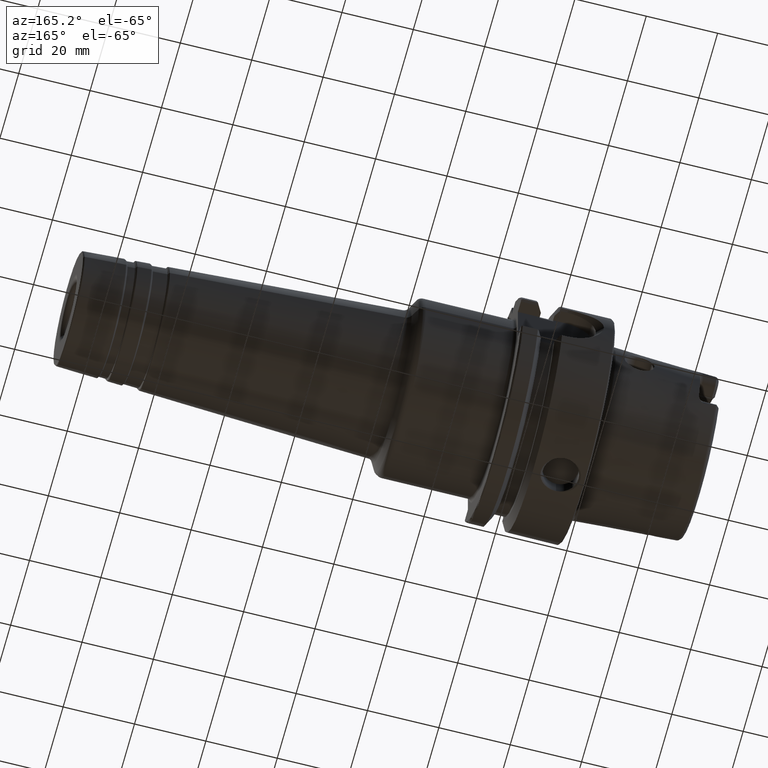
[diagram: clean part render]
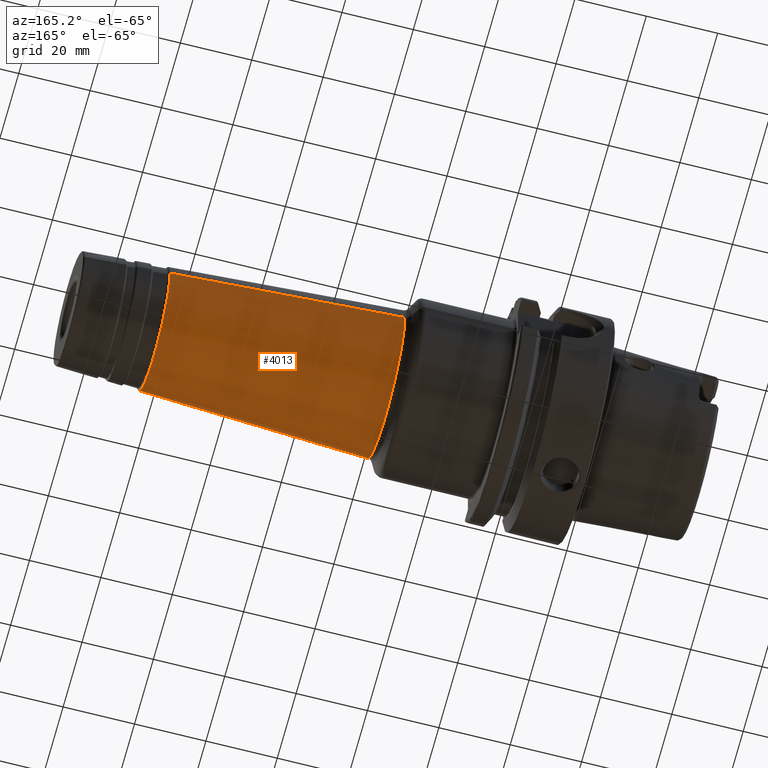
[diagram: same view with one face highlighted and labeled with its STEP entity id]
A machine part, auxiliary view. The second image highlights one B-rep face of the part: STEP entity #4013.
In plain terms, the highlighted conical surface has half-angle 3 deg.
Its self-contained STEP definition (entity closure, byte-faithful):
#541=CARTESIAN_POINT('',(4.763801060891E0,0.E0,0.E0));
#542=DIRECTION('',(-1.E0,0.E0,0.E0));
#543=DIRECTION('',(0.E0,1.E0,0.E0));
#544=AXIS2_PLACEMENT_3D('',#541,#542,#543);
#546=DIRECTION('',(-9.986295347546E-1,5.233595624294E-2,-6.838458657081E-13));
#547=VECTOR('',#546,2.558472642509E0);
#548=CARTESIAN_POINT('',(4.763801060891E0,6.795357773794E-1,0.E0));
#549=LINE('',#548,#547);
#550=CARTESIAN_POINT('',(2.208834716220E0,0.E0,0.E0));
#551=DIRECTION('',(1.E0,0.E0,0.E0));
#552=DIRECTION('',(0.E0,-1.E0,0.E0));
#553=AXIS2_PLACEMENT_3D('',#550,#551,#552);
#555=DIRECTION('',(-9.986295347546E-1,-5.233595624294E-2,6.838497749636E-13));
#556=VECTOR('',#555,2.558472642509E0);
#557=CARTESIAN_POINT('',(4.763801060891E0,-6.795357773794E-1,0.E0));
#558=LINE('',#557,#556);
#3314=CARTESIAN_POINT('',(2.208834716220E0,-8.134358896465E-1,0.E0));
#3315=CARTESIAN_POINT('',(2.208834716220E0,8.134358896465E-1,0.E0));
#3316=VERTEX_POINT('',#3314);
#3317=VERTEX_POINT('',#3315);
#3318=CARTESIAN_POINT('',(4.763801060891E0,6.795357773794E-1,0.E0));
#3319=CARTESIAN_POINT('',(4.763801060891E0,-6.795357773794E-1,0.E0));
#3320=VERTEX_POINT('',#3318);
#3321=VERTEX_POINT('',#3319);
#3998=CARTESIAN_POINT('',(3.949440717672E0,0.E0,0.E0));
#3999=DIRECTION('',(-1.E0,0.E0,0.E0));
#4000=DIRECTION('',(0.E0,1.E0,0.E0));
#4001=AXIS2_PLACEMENT_3D('',#3998,#3999,#4000);
#4002=CONICAL_SURFACE('',#4001,7.222145945036E-1,3.E0);
#4004=ORIENTED_EDGE('',*,*,#4003,.F.);
#4006=ORIENTED_EDGE('',*,*,#4005,.T.);
#4008=ORIENTED_EDGE('',*,*,#4007,.F.);
#4010=ORIENTED_EDGE('',*,*,#4009,.F.);
#4011=EDGE_LOOP('',(#4004,#4006,#4008,#4010));
#4012=FACE_OUTER_BOUND('',#4011,.F.);
#4013=ADVANCED_FACE('',(#4012),#4002,.T.);
#545=CIRCLE('',#544,6.795357773794E-1);
#554=CIRCLE('',#553,8.134358896465E-1);
#4003=EDGE_CURVE('',#3320,#3321,#545,.T.);
#4005=EDGE_CURVE('',#3320,#3317,#549,.T.);
#4007=EDGE_CURVE('',#3316,#3317,#554,.T.);
#4009=EDGE_CURVE('',#3321,#3316,#558,.T.);